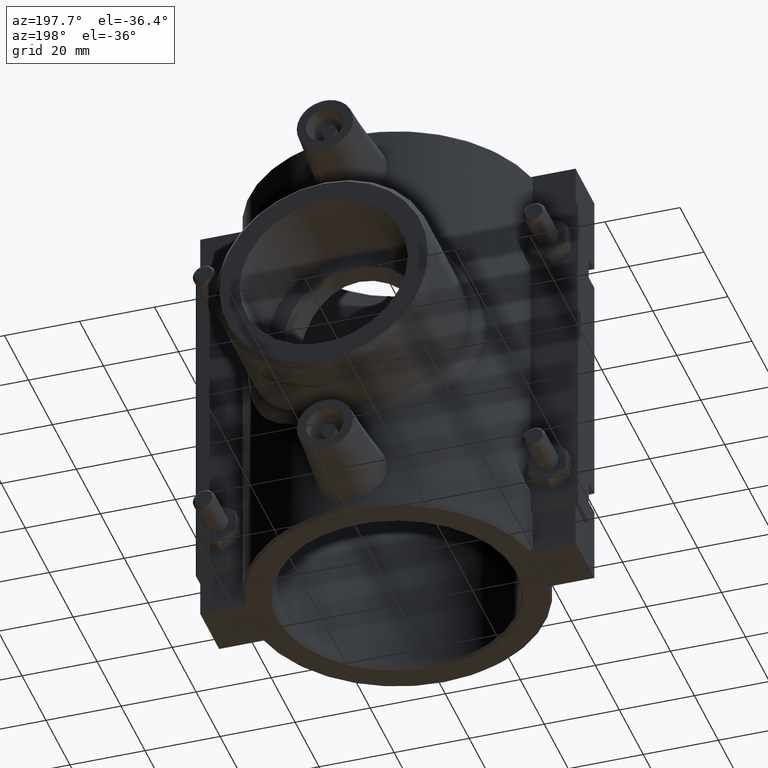
[diagram: clean part render]
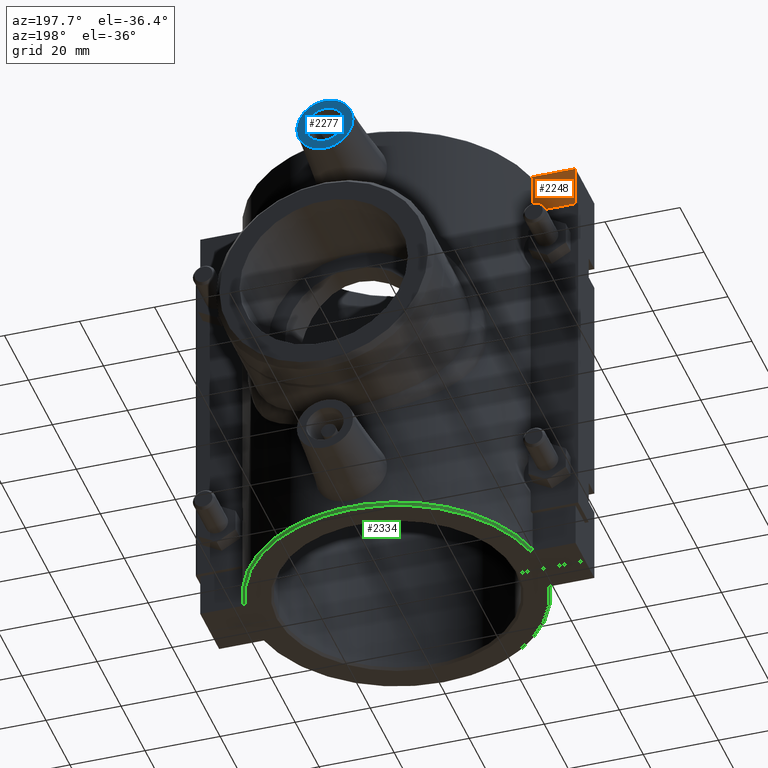
[diagram: same view with three faces highlighted in distinct colors, each labeled with its STEP entity id]
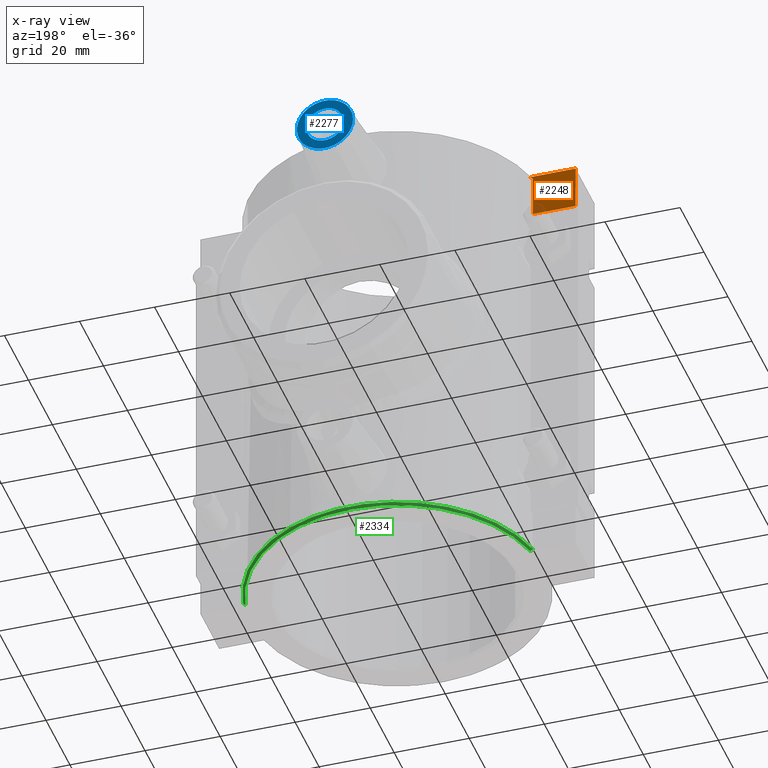
[diagram: x-ray of the same camera — body ghosted, the three highlighted faces saturated]
A machine part, auxiliary view with three faces highlighted in distinct colors.
The next image is the same camera in x-ray (body ghosted, the three faces saturated) — at least one of them is partly hidden behind the body in this view.
Their STEP definitions:

[orange] entity #2248 — the highlighted planar face has unit normal (0, 1, 0).
#36=(
BOUNDED_CURVE()
B_SPLINE_CURVE(2,(#3383,#3384,#3385),.UNSPECIFIED.,.F.,.F.)
B_SPLINE_CURVE_WITH_KNOTS((3,3),(0.,0.090034318503411),.UNSPECIFIED.)
CURVE()
GEOMETRIC_REPRESENTATION_ITEM()
RATIONAL_B_SPLINE_CURVE((1.,1.00003389760153,1.))
REPRESENTATION_ITEM('')
);
#184=FACE_OUTER_BOUND('',#328,.T.);
#328=EDGE_LOOP('',(#1564,#1565,#1566,#1567,#1568));
#517=LINE('',#3236,#708);
#537=LINE('',#3322,#728);
#541=LINE('',#3381,#732);
#542=LINE('',#3386,#733);
#708=VECTOR('',#2614,11.4205365511649);
#728=VECTOR('',#2646,11.8);
#732=VECTOR('',#2654,12.063745572342);
#733=VECTOR('',#2655,11.17);
#975=VERTEX_POINT('',#3226);
#979=VERTEX_POINT('',#3234);
#1001=VERTEX_POINT('',#3320);
#1004=VERTEX_POINT('',#3380);
#1005=VERTEX_POINT('',#3382);
#1199=EDGE_CURVE('',#975,#979,#517,.T.);
#1226=EDGE_CURVE('',#979,#1001,#537,.T.);
#1231=EDGE_CURVE('',#1001,#1004,#541,.T.);
#1232=EDGE_CURVE('',#1005,#1004,#36,.F.);
#1233=EDGE_CURVE('',#1005,#975,#542,.T.);
#1564=ORIENTED_EDGE('',*,*,#1199,.T.);
#1565=ORIENTED_EDGE('',*,*,#1226,.T.);
#1566=ORIENTED_EDGE('',*,*,#1231,.T.);
#1567=ORIENTED_EDGE('',*,*,#1232,.F.);
#1568=ORIENTED_EDGE('',*,*,#1233,.T.);
#2164=PLANE('',#2395);
#2248=ADVANCED_FACE('',(#184),#2164,.T.);
#2395=AXIS2_PLACEMENT_3D('',#3379,#2652,#2653);
#2614=DIRECTION('',(-1.,0.,0.));
#2646=DIRECTION('',(0.,0.,1.));
#2652=DIRECTION('center_axis',(0.,1.,0.));
#2653=DIRECTION('ref_axis',(-1.,0.,0.));
#2654=DIRECTION('',(1.,0.,0.));
#2655=DIRECTION('',(0.,0.,-1.));
#3226=CARTESIAN_POINT('',(-38.5794634488351,7.87499999999999,47.2));
#3234=CARTESIAN_POINT('',(-50.,7.87499999999999,47.2));
#3236=CARTESIAN_POINT('',(-41.5647114035952,7.875,47.2));
#3320=CARTESIAN_POINT('',(-50.,7.875,59.));
#3322=CARTESIAN_POINT('',(-50.,7.875,0.));
#3379=CARTESIAN_POINT('Origin',(-38.5794634488351,7.875,0.));
#3380=CARTESIAN_POINT('',(-37.936254427658,7.875,59.));
#3381=CARTESIAN_POINT('',(-41.7151760887339,7.875,59.));
#3382=CARTESIAN_POINT('',(-38.5794634488351,7.875,58.37));
#3383=CARTESIAN_POINT('Ctrl Pts',(-37.936254427658,7.875,59.));
#3384=CARTESIAN_POINT('Ctrl Pts',(-38.2552653535105,7.875,58.6876479636509));
#3385=CARTESIAN_POINT('Ctrl Pts',(-38.5794634488351,7.875,58.37));
#3386=CARTESIAN_POINT('',(-38.5794634488351,7.875,0.));

[blue] entity #2277 — the highlighted planar face has unit normal (0, -1, 0).
#99=FACE_BOUND('',#364,.T.);
#213=FACE_OUTER_BOUND('',#363,.T.);
#363=EDGE_LOOP('',(#1693));
#364=EDGE_LOOP('',(#1694));
#903=CIRCLE('',#2429,5.);
#904=CIRCLE('',#2432,7.5);
#1063=VERTEX_POINT('',#3689);
#1064=VERTEX_POINT('',#3693);
#1313=EDGE_CURVE('',#1063,#1063,#903,.T.);
#1314=EDGE_CURVE('',#1064,#1064,#904,.T.);
#1693=ORIENTED_EDGE('',*,*,#1314,.T.);
#1694=ORIENTED_EDGE('',*,*,#1313,.T.);
#2185=PLANE('',#2433);
#2277=ADVANCED_FACE('',(#213,#99),#2185,.F.);
#2429=AXIS2_PLACEMENT_3D('',#3690,#2783,#2784);
#2432=AXIS2_PLACEMENT_3D('',#3694,#2789,#2790);
#2433=AXIS2_PLACEMENT_3D('',#3730,#2791,#2792);
#2783=DIRECTION('center_axis',(0.,-1.,0.));
#2784=DIRECTION('ref_axis',(-1.,0.,0.));
#2789=DIRECTION('center_axis',(0.,1.,0.));
#2790=DIRECTION('ref_axis',(1.,0.,0.));
#2791=DIRECTION('center_axis',(0.,-1.,0.));
#2792=DIRECTION('ref_axis',(0.,0.,-1.));
#3689=CARTESIAN_POINT('',(5.,60.5,47.2));
#3690=CARTESIAN_POINT('Origin',(0.,60.5,47.2));
#3693=CARTESIAN_POINT('',(-7.5,60.5,47.2));
#3694=CARTESIAN_POINT('Origin',(0.,60.5,47.2));
#3730=CARTESIAN_POINT('Origin',(7.65404249467095E-17,60.5,47.2));

[green] entity #2334 — the highlighted conical surface has half-angle 45 deg.
#28=CONICAL_SURFACE('',#2524,39.06,45.0000000000002);
#49=(
BOUNDED_CURVE()
B_SPLINE_CURVE(2,(#4275,#4276,#4277),.UNSPECIFIED.,.F.,.F.)
B_SPLINE_CURVE_WITH_KNOTS((3,3),(0.,0.090034318503411),.UNSPECIFIED.)
CURVE()
GEOMETRIC_REPRESENTATION_ITEM()
RATIONAL_B_SPLINE_CURVE((1.,1.00003389760153,1.))
REPRESENTATION_ITEM('')
);
#50=(
BOUNDED_CURVE()
B_SPLINE_CURVE(2,(#4279,#4280,#4281),.UNSPECIFIED.,.F.,.F.)
B_SPLINE_CURVE_WITH_KNOTS((3,3),(0.,0.0900343185034107),.UNSPECIFIED.)
CURVE()
GEOMETRIC_REPRESENTATION_ITEM()
RATIONAL_B_SPLINE_CURVE((1.,1.00003389763031,1.))
REPRESENTATION_ITEM('')
);
#270=FACE_OUTER_BOUND('',#444,.T.);
#444=EDGE_LOOP('',(#1964,#1965,#1966,#1967));
#913=CIRCLE('',#2457,39.375);
#942=CIRCLE('',#2525,38.745);
#1078=VERTEX_POINT('',#3820);
#1079=VERTEX_POINT('',#3822);
#1145=VERTEX_POINT('',#4274);
#1146=VERTEX_POINT('',#4278);
#1337=EDGE_CURVE('',#1079,#1078,#913,.T.);
#1437=EDGE_CURVE('',#1145,#1079,#49,.F.);
#1438=EDGE_CURVE('',#1078,#1146,#50,.F.);
#1439=EDGE_CURVE('',#1146,#1145,#942,.T.);
#1964=ORIENTED_EDGE('',*,*,#1437,.T.);
#1965=ORIENTED_EDGE('',*,*,#1337,.T.);
#1966=ORIENTED_EDGE('',*,*,#1438,.T.);
#1967=ORIENTED_EDGE('',*,*,#1439,.T.);
#2334=ADVANCED_FACE('',(#270),#28,.T.);
#2457=AXIS2_PLACEMENT_3D('',#3823,#2850,#2851);
#2524=AXIS2_PLACEMENT_3D('',#4273,#3037,#3038);
#2525=AXIS2_PLACEMENT_3D('',#4282,#3039,#3040);
#2850=DIRECTION('center_axis',(0.,0.,-1.));
#2851=DIRECTION('ref_axis',(1.,0.,0.));
#3037=DIRECTION('center_axis',(0.,0.,1.));
#3038=DIRECTION('ref_axis',(1.,0.,0.));
#3039=DIRECTION('center_axis',(0.,0.,1.));
#3040=DIRECTION('ref_axis',(1.,0.,0.));
#3820=CARTESIAN_POINT('',(38.5794634488351,7.87499999999999,-58.37));
#3822=CARTESIAN_POINT('',(-38.5794634488351,7.875,-58.37));
#3823=CARTESIAN_POINT('Origin',(0.,0.,-58.37));
#4273=CARTESIAN_POINT('Origin',(0.,0.,-58.685));
#4274=CARTESIAN_POINT('',(-37.936254427658,7.87499999999999,-59.));
#4275=CARTESIAN_POINT('Ctrl Pts',(-38.5794634488351,7.875,-58.37));
#4276=CARTESIAN_POINT('Ctrl Pts',(-38.2552653535105,7.875,-58.6876479636509));
#4277=CARTESIAN_POINT('Ctrl Pts',(-37.936254427658,7.875,-59.));
#4278=CARTESIAN_POINT('',(37.936254427658,7.87499999999998,-59.));
#4279=CARTESIAN_POINT('Ctrl Pts',(37.936254427658,7.87499999999999,-59.));
#4280=CARTESIAN_POINT('Ctrl Pts',(38.2552653535041,7.87499999999999,-58.6876479636572));
#4281=CARTESIAN_POINT('Ctrl Pts',(38.5794634488351,7.87499999999999,-58.37));
#4282=CARTESIAN_POINT('Origin',(0.,0.,-59.));